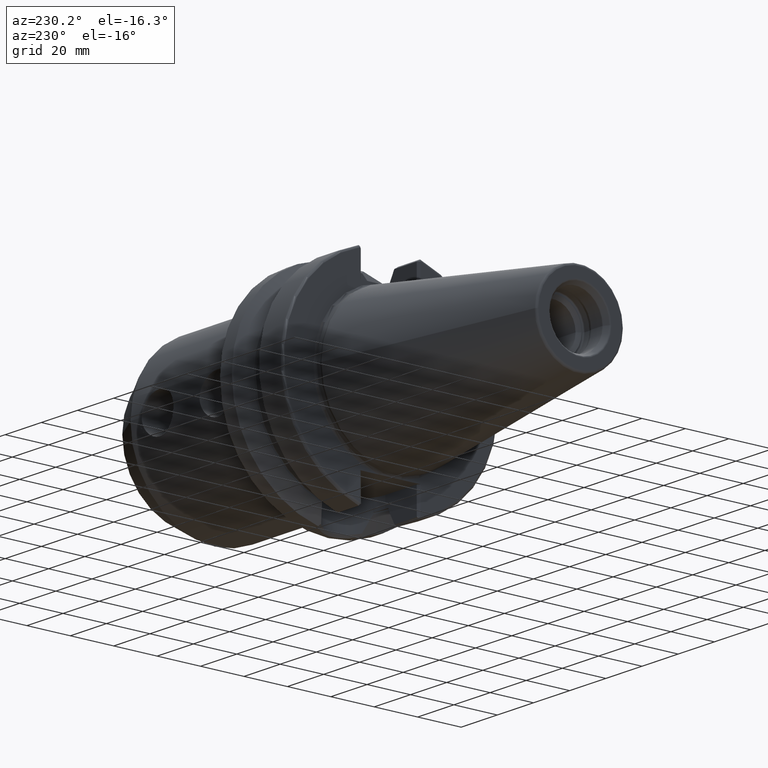
[diagram: clean part render]
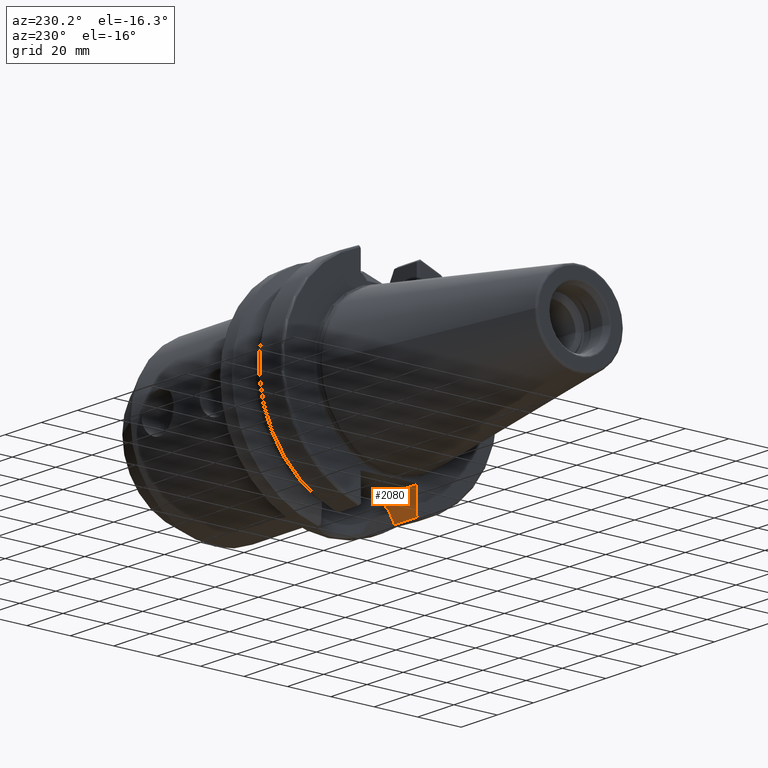
[diagram: same view with one face highlighted and labeled with its STEP entity id]
A machine part, auxiliary view. The second image highlights one B-rep face of the part: STEP entity #2080.
In plain terms, the highlighted planar face has unit normal (0, -1, 0).
Its self-contained STEP definition (entity closure, byte-faithful):
#295=DIRECTION('',(0.E0,0.E0,-1.E0));
#296=VECTOR('',#295,4.678451531613E-1);
#297=CARTESIAN_POINT('',(1.96625E1,-1.29025E1,-4.062531376802E1));
#298=LINE('',#297,#296);
#299=CARTESIAN_POINT('',(1.99125E1,-1.29025E1,-4.036293000700E1));
#300=CARTESIAN_POINT('',(1.988482223968E1,-1.29025E1,-4.036293000700E1));
#301=CARTESIAN_POINT('',(1.983275140013E1,-1.29025E1,-4.037231907874E1));
#302=CARTESIAN_POINT('',(1.976358989115E1,-1.29025E1,-4.040921074747E1));
#303=CARTESIAN_POINT('',(1.970597803203E1,-1.29025E1,-4.046933362101E1));
#304=CARTESIAN_POINT('',(1.967010312706E1,-1.29025E1,-4.054571527488E1));
#305=CARTESIAN_POINT('',(1.96625E1,-1.29025E1,-4.059802443585E1));
#306=CARTESIAN_POINT('',(1.96625E1,-1.29025E1,-4.062531376802E1));
#308=DIRECTION('',(1.E0,0.E0,0.E0));
#309=VECTOR('',#308,1.435E0);
#310=CARTESIAN_POINT('',(1.99125E1,-1.29025E1,-4.036293000700E1));
#311=LINE('',#310,#309);
#312=DIRECTION('',(-5.129281470936E-7,5.122293284830E-7,-9.999999999997E-1));
#313=VECTOR('',#312,1.177331056675E1);
#314=CARTESIAN_POINT('',(4.E0,-1.29025E1,-3.52E1));
#315=LINE('',#314,#313);
#316=CARTESIAN_POINT('',(3.999993961138E0,-1.290249396937E1,-4.697331056674E1));
#317=CARTESIAN_POINT('',(3.981975961438E0,-1.290249396937E1,-4.697876868360E1));
#318=CARTESIAN_POINT('',(3.948689573130E0,-1.290250279942E1,-4.699509717081E1));
#319=CARTESIAN_POINT('',(3.903730030628E0,-1.290249924798E1,-4.704031753072E1));
#320=CARTESIAN_POINT('',(3.875687876660E0,-1.290250020864E1,-4.709955792880E1));
#321=CARTESIAN_POINT('',(3.868340134922E0,-1.290249991745E1,-4.716386491502E1));
#322=CARTESIAN_POINT('',(3.882132130738E0,-1.290250012158E1,-4.722328575491E1));
#323=CARTESIAN_POINT('',(3.913011146217E0,-1.290249959625E1,-4.726973353600E1));
#324=CARTESIAN_POINT('',(3.955328137349E0,-1.290250149344E1,-4.729813597703E1));
#325=CARTESIAN_POINT('',(3.984570609571E0,-1.290249678449E1,-4.730395410478E1));
#326=CARTESIAN_POINT('',(3.999999988296E0,-1.290249678449E1,-4.730399634611E1));
#328=DIRECTION('',(9.999999999999E-1,-2.631146682253E-7,3.498135127772E-7));
#329=VECTOR('',#328,1.222095964835E1);
#330=CARTESIAN_POINT('',(3.999999988296E0,-1.290249678449E1,-4.730399634611E1));
#331=LINE('',#330,#329);
#332=CARTESIAN_POINT('',(1.96625E1,-1.29025E1,-4.109315892118E1));
#333=CARTESIAN_POINT('',(1.930371923002E1,-1.29025E1,-4.174449707739E1));
#334=CARTESIAN_POINT('',(1.857040869022E1,-1.29025E1,-4.307298282769E1));
#335=CARTESIAN_POINT('',(1.742403081668E1,-1.29025E1,-4.514175024416E1));
#336=CARTESIAN_POINT('',(1.662730270625E1,-1.29025E1,-4.657447448688E1));
#337=CARTESIAN_POINT('',(1.622095963665E1,-1.29025E1,-4.730399207105E1));
#435=DIRECTION('',(0.E0,0.E0,-1.E0));
#436=VECTOR('',#435,5.162930007E0);
#437=CARTESIAN_POINT('',(2.13475E1,-1.29025E1,-3.52E1));
#438=LINE('',#437,#436);
#749=DIRECTION('',(1.E0,0.E0,0.E0));
#750=VECTOR('',#749,1.73475E1);
#751=CARTESIAN_POINT('',(4.E0,-1.29025E1,-3.52E1));
#752=LINE('',#751,#750);
#1432=CARTESIAN_POINT('',(1.96625E1,-1.29025E1,-4.062531376802E1));
#1434=VERTEX_POINT('',#1432);
#1440=CARTESIAN_POINT('',(1.99125E1,-1.29025E1,-4.036293000700E1));
#1442=VERTEX_POINT('',#1440);
#1477=CARTESIAN_POINT('',(1.96625E1,-1.29025E1,-4.109315892118E1));
#1479=VERTEX_POINT('',#1477);
#1570=CARTESIAN_POINT('',(2.13475E1,-1.29025E1,-3.52E1));
#1572=VERTEX_POINT('',#1570);
#1589=CARTESIAN_POINT('',(2.13475E1,-1.29025E1,-4.036293000700E1));
#1590=VERTEX_POINT('',#1589);
#1591=VERTEX_POINT('',#337);
#1635=CARTESIAN_POINT('',(4.E0,-1.29025E1,-3.52E1));
#1636=CARTESIAN_POINT('',(3.999993961138E0,-1.290249396937E1,
-4.697331056674E1));
#1637=VERTEX_POINT('',#1635);
#1638=VERTEX_POINT('',#1636);
#1641=CARTESIAN_POINT('',(3.999999988296E0,-1.290249678449E1,
-4.730399634611E1));
#1642=VERTEX_POINT('',#1641);
#2058=CARTESIAN_POINT('',(2.5E0,-1.29025E1,-3.52E1));
#2059=DIRECTION('',(0.E0,-1.E0,0.E0));
#2060=DIRECTION('',(1.E0,0.E0,0.E0));
#2061=AXIS2_PLACEMENT_3D('',#2058,#2059,#2060);
#2062=PLANE('',#2061);
#2063=ORIENTED_EDGE('',*,*,#1952,.F.);
#2065=ORIENTED_EDGE('',*,*,#2064,.F.);
#2067=ORIENTED_EDGE('',*,*,#2066,.T.);
#2069=ORIENTED_EDGE('',*,*,#2068,.F.);
#2071=ORIENTED_EDGE('',*,*,#2070,.F.);
#2073=ORIENTED_EDGE('',*,*,#2072,.T.);
#2075=ORIENTED_EDGE('',*,*,#2074,.T.);
#2076=ORIENTED_EDGE('',*,*,#2050,.T.);
#2077=ORIENTED_EDGE('',*,*,#1981,.F.);
#2078=EDGE_LOOP('',(#2063,#2065,#2067,#2069,#2071,#2073,#2075,#2076,#2077));
#2079=FACE_OUTER_BOUND('',#2078,.F.);
#2080=ADVANCED_FACE('',(#2079),#2062,.F.);
#307=B_SPLINE_CURVE_WITH_KNOTS('',3,(#299,#300,#301,#302,#303,#304,#305,#306),
.UNSPECIFIED.,.F.,.F.,(4,1,1,1,1,4),(0.E0,2.E-1,4.E-1,6.E-1,8.E-1,1.E0),
.UNSPECIFIED.);
#327=B_SPLINE_CURVE_WITH_KNOTS('',3,(#316,#317,#318,#319,#320,#321,#322,#323,
#324,#325,#326),.UNSPECIFIED.,.F.,.F.,(4,1,1,1,1,1,1,1,4),(0.E0,1.25E-1,2.5E-1,
3.75E-1,5.E-1,6.25E-1,7.5E-1,8.75E-1,1.E0),.UNSPECIFIED.);
#338=B_SPLINE_CURVE_WITH_KNOTS('',3,(#332,#333,#334,#335,#336,#337),
.UNSPECIFIED.,.F.,.F.,(4,1,1,4),(0.E0,3.333333333333E-1,6.666666666667E-1,1.E0),
.UNSPECIFIED.);
#1952=EDGE_CURVE('',#1434,#1479,#298,.T.);
#1981=EDGE_CURVE('',#1479,#1591,#338,.T.);
#2050=EDGE_CURVE('',#1642,#1591,#331,.T.);
#2064=EDGE_CURVE('',#1442,#1434,#307,.T.);
#2066=EDGE_CURVE('',#1442,#1590,#311,.T.);
#2068=EDGE_CURVE('',#1572,#1590,#438,.T.);
#2070=EDGE_CURVE('',#1637,#1572,#752,.T.);
#2072=EDGE_CURVE('',#1637,#1638,#315,.T.);
#2074=EDGE_CURVE('',#1638,#1642,#327,.T.);